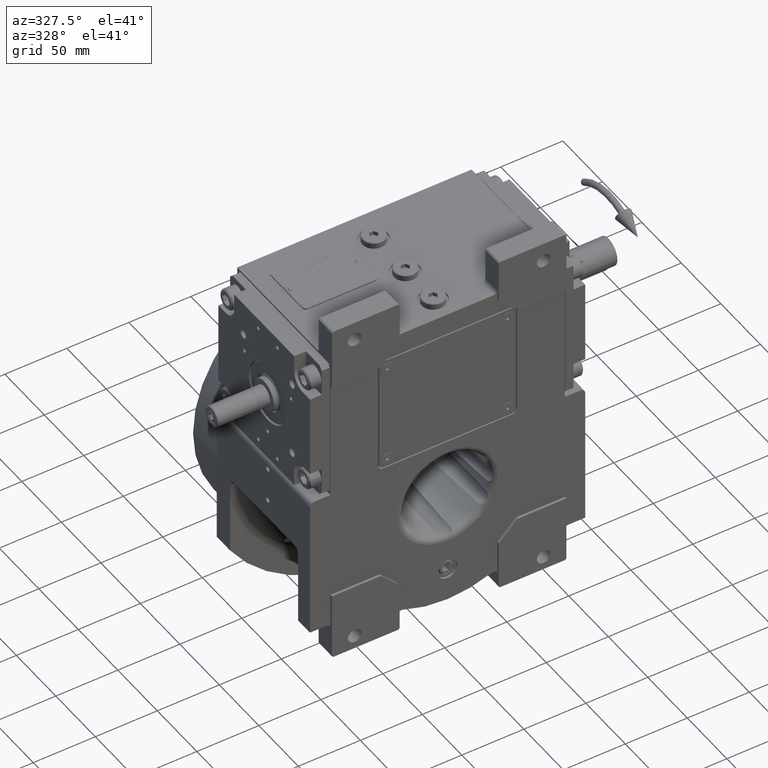
[diagram: clean part render]
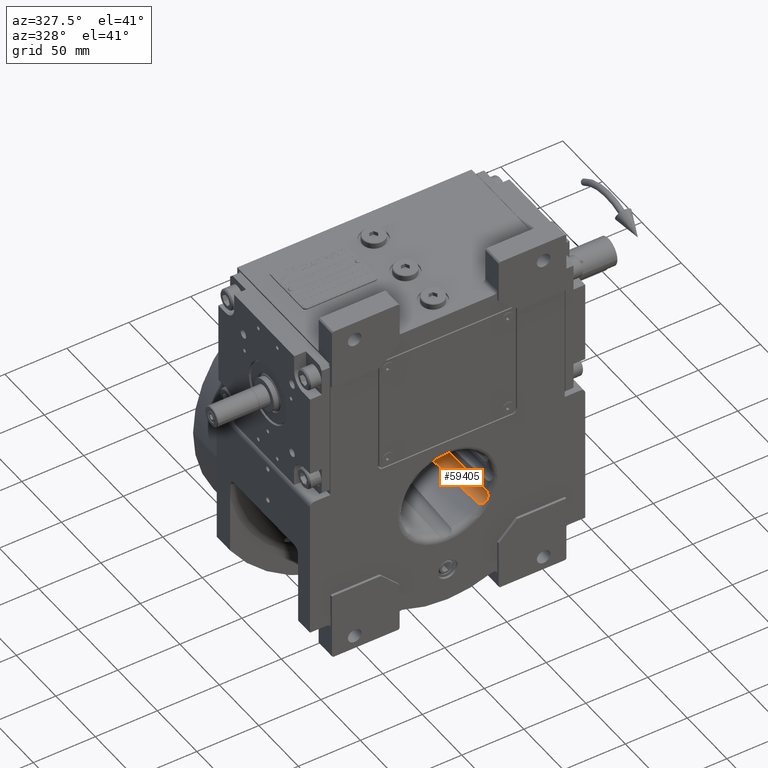
[diagram: same view with one face highlighted and labeled with its STEP entity id]
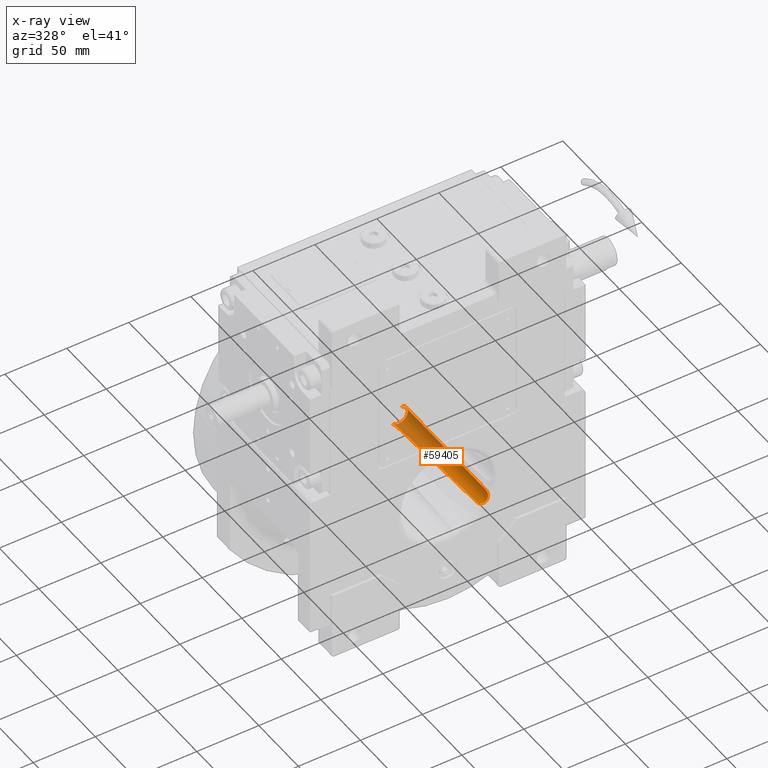
[diagram: x-ray of the same camera — body ghosted, the highlighted face saturated]
A machine part, auxiliary view. The second image highlights one B-rep face of the part: STEP entity #59405.
The next image is the same camera in x-ray: the body ghosted, the highlighted face saturated — about 51% of this face is hidden behind the body in this view.
In plain terms, the highlighted cylindrical surface (edge-blend (fillet) strip) has radius 7.5 mm, axis along (0, -1, 0).
Its self-contained STEP definition (entity closure, byte-faithful):
#50 = B_SPLINE_CURVE_WITH_KNOTS ( 'NONE', 3,
 ( #49718, #13193, #19049, #2536, #34223, #56230, #18701, #19393, #9010, #29040, #50051, #61069, #40411, #2869, #44891, #14194, #39728, #50390, #66891, #13868, #8354, #19716, #3207, #55892, #8683, #3872, #24868, #45900, #35916, #47243, #30716, #26241, #51731, #25199, #46916, #9344, #57949, #31061, #52750, #51395, #20059, #67573, #62419, #20403, #52422, #21416, #15901, #42433, #41429, #63441, #10376, #67923, #15220, #67235, #20741, #73, #25902, #36600, #57598, #414, #41090, #62067, #46228, #52079, #36950, #36253 ),
 .UNSPECIFIED., .F., .F.,
 ( 4, 2, 2, 1, 1, 2, 2, 2, 2, 1, 1, 2, 2, 2, 2, 1, 1, 2, 2, 2, 2, 2, 1, 1, 2, 2, 2, 2, 1, 1, 2, 2, 2, 2, 1, 1, 2, 2, 4 ),
 ( 0.000000000000000000, 0.06249999999999567013, 0.09374999999999290845, 0.1093749999999919786, 0.1171874999999911876, 0.1210937499999912847, 0.1249999999999913680, 0.1874999999999866773, 0.2187499999999844569, 0.2343749999999831801, 0.2421874999999826528, 0.2460937499999822642, 0.2499999999999818756, 0.3124999999999772959, 0.3437499999999748534, 0.3593749999999740763, 0.3671874999999734657, 0.3710937499999731881, 0.3749999999999729106, 0.4999999999999689138, 0.5624999999999669154, 0.5937499999999651390, 0.6093749999999642508, 0.6171874999999641398, 0.6210937499999640288, 0.6249999999999644729, 0.6874999999999646949, 0.7187499999999648059, 0.7343749999999650280, 0.7421874999999654721, 0.7460937499999658051, 0.7499999999999662492, 0.8124999999999700240, 0.8437499999999716893, 0.8593749999999724665, 0.8671874999999723554, 0.8710937499999726885, 0.8749999999999731326, 1.000000000000000000 ),
 .UNSPECIFIED. ) ;
#73 = CARTESIAN_POINT ( 'NONE',  ( 28.62129483368184424, -51.22089827138685081, -22.02211891114028930 ) ) ;
#252 = CARTESIAN_POINT ( 'NONE',  ( 28.64270902727741230, 49.28249355029117851, -7.988074472336900378 ) ) ;
#414 = CARTESIAN_POINT ( 'NONE',  ( 28.14449002315179627, -50.73086332806069976, -22.18124559644082439 ) ) ;
#1215 = CARTESIAN_POINT ( 'NONE',  ( 25.84112447786591815, -21.65130370040643726, -22.49889461834862203 ) ) ;
#1270 = CARTESIAN_POINT ( 'NONE',  ( 28.43763504361497141, 49.36092524768206147, -7.914062283107394791 ) ) ;
#2033 = EDGE_CURVE ( 'NONE', #54700, #2770, #9407, .T. ) ;
#2536 = CARTESIAN_POINT ( 'NONE',  ( 33.13291483700965756, -49.87096445335872374, -12.74149848118316974 ) ) ;
#2770 = VERTEX_POINT ( 'NONE', #23965 ) ;
#2869 = CARTESIAN_POINT ( 'NONE',  ( 33.42242944526029191, -51.42890714545311681, -14.04994483407304884 ) ) ;
#3074 = CARTESIAN_POINT ( 'NONE',  ( 22.62376389535896237, 47.72476955967440659, -21.70636552573297706 ) ) ;
#3145 = B_SPLINE_CURVE_WITH_KNOTS ( 'NONE', 3,
 ( #38760, #47719, #27378, #6690, #49084, #1215, #59765, #11868, #22214, #52871, #32203, #53897, #5686, #17402, #27731, #28073, #43235, #64237, #43587, #27040, #48730, #12214, #53214, #11511 ),
 .UNSPECIFIED., .F., .F.,
 ( 4, 2, 1, 2, 2, 1, 1, 1, 1, 1, 1, 1, 1, 1, 2, 2, 4 ),
 ( 0.000000000000000000, 0.2500000000000016098, 0.2812500000000018319, 0.2851562500000017764, 0.2890625000000017764, 0.2968750000000016653, 0.3125000000000015543, 0.3750000000000011657, 0.4375000000000008327, 0.4687500000000005551, 0.4843750000000004441, 0.4921875000000003886, 0.4960937500000003886, 0.4980468750000003886, 0.4990234375000003886, 0.5000000000000003331, 1.000000000000000000 ),
 .UNSPECIFIED. ) ;
#3207 = CARTESIAN_POINT ( 'NONE',  ( 33.47434757429027030, -52.13325520986163042, -15.46181975383077933 ) ) ;
#3609 = B_SPLINE_CURVE_WITH_KNOTS ( 'NONE', 3,
 ( #43291, #6404, #6746, #32609, #53611, #1270, #22265, #11917, #32949, #53951, #27785, #252, #64640, #17450, #26415, #59476, #54633, #23622, #45312, #33973, #23954, #39141, #44644, #8104, #60157, #12949, #39815, #49464, #28124, #66319, #13281, #29128, #12270, #7437, #65645, #19142, #54959, #44975, #60825, #18792 ),
 .UNSPECIFIED., .F., .F.,
 ( 4, 2, 2, 1, 1, 1, 2, 2, 2, 2, 2, 1, 1, 2, 2, 2, 2, 2, 1, 1, 1, 2, 2, 4 ),
 ( 0.000000000000000000, 0.1250000000000699718, 0.1875000000001050549, 0.2187500000001213751, 0.2343750000001275646, 0.2421875000001306732, 0.2460937500001305900, 0.2500000000001305067, 0.3750000000001355027, 0.4375000000001368905, 0.4687500000001377232, 0.4843750000001381117, 0.4921875000001391109, 0.4960937500001379452, 0.5000000000001366685, 0.6250000000000955902, 0.6875000000000729417, 0.7187500000000637268, 0.7343750000000593969, 0.7421875000000571765, 0.7460937500000520695, 0.7480468750000495159, 0.7500000000000468514, 1.000000000000000000 ),
 .UNSPECIFIED. ) ;
#3872 = CARTESIAN_POINT ( 'NONE',  ( 33.35239434236466849, -52.38337893050042737, -16.38553644103897255 ) ) ;
#3916 = CARTESIAN_POINT ( 'NONE',  ( 32.28860166177389601, -17.24455032077938554, -10.94150003703324892 ) ) ;
#4094 = ORIENTED_EDGE ( 'NONE', *, *, #44393, .F. ) ;
#5159 = CARTESIAN_POINT ( 'NONE',  ( 22.33398473274978357, 48.26979710815191993, -21.55574796819589878 ) ) ;
#5686 = CARTESIAN_POINT ( 'NONE',  ( 25.17767317591803433, -8.134360099423856738, -22.45791745369351133 ) ) ;
#6404 = CARTESIAN_POINT ( 'NONE',  ( 27.75952172322075739, 49.50000000000001421, -7.713583899941733435 ) ) ;
#6690 = CARTESIAN_POINT ( 'NONE',  ( 25.95599512359059347, -23.90877444478225655, -22.50037177852627224 ) ) ;
#6746 = CARTESIAN_POINT ( 'NONE',  ( 27.94791957820150330, 49.48053272191639707, -7.762554996281687103 ) ) ;
#7037 = CARTESIAN_POINT ( 'NONE',  ( 27.31593238095755183, -48.69402850002909844, -22.38019785351220392 ) ) ;
#7437 = CARTESIAN_POINT ( 'NONE',  ( 30.10453856292593500, 47.73902924923378066, -8.735856078122393953 ) ) ;
#7872 = CARTESIAN_POINT ( 'NONE',  ( 22.58719671728971790, 47.81176194098394916, -21.68800217263217434 ) ) ;
#8056 = CARTESIAN_POINT ( 'NONE',  ( 32.42569894083302273, -22.43255883661146655, -11.16332848127214206 ) ) ;
#8104 = CARTESIAN_POINT ( 'NONE',  ( 29.52136385091750626, 48.66597216092836931, -8.388291565594679255 ) ) ;
#8354 = CARTESIAN_POINT ( 'NONE',  ( 33.47823845104405649, -51.86280972426659019, -14.81397450803115845 ) ) ;
#8553 = CARTESIAN_POINT ( 'NONE',  ( 22.63672783654285681, 47.69338008764778181, -21.71287796099537459 ) ) ;
#8683 = CARTESIAN_POINT ( 'NONE',  ( 33.39774868221235238, -52.32431288209246389, -16.12886248307036752 ) ) ;
#8720 = CARTESIAN_POINT ( 'NONE',  ( 31.78450808967726715, 0.6730493479327744888, -10.24943762511609613 ) ) ;
#8847 = ORIENTED_EDGE ( 'NONE', *, *, #22171, .F. ) ;
#9010 = CARTESIAN_POINT ( 'NONE',  ( 33.24563799385272489, -50.54597896097496346, -13.13767611420215609 ) ) ;
#9344 = CARTESIAN_POINT ( 'NONE',  ( 31.77943181704246456, -52.58169936381241172, -19.76047654109651219 ) ) ;
#9407 = B_SPLINE_CURVE_WITH_KNOTS ( 'NONE', 3,
 ( #60587, #39921, #34761, #18235, #29240, #13390, #55762, #39258, #8553, #34071, #55067, #3074, #18899, #7872, #28899, #62675, #5159, #61655, #19984, #67156, #51315, #25821, #46149, #57872, #14462, #62344, #35482, #26170, #41009, #52342, #30301, #61994, #40664, #20326, #14803, #51999, #21003, #11181, #57169 ),
 .UNSPECIFIED., .F., .F.,
 ( 4, 2, 2, 1, 1, 1, 1, 2, 2, 2, 2, 2, 1, 1, 2, 2, 2, 2, 1, 1, 1, 2, 2, 4 ),
 ( 0.000000000000000000, 0.1249999999996872502, 0.1874999999995307642, 0.2187499999994505229, 0.2343749999994078625, 0.2421874999993843536, 0.2460937499993743061, 0.2480468749993699484, 0.2499999999993655908, 0.3749999999995065614, 0.4374999999995770605, 0.4687499999996113664, 0.4843749999996301847, 0.4921874999996396216, 0.4960937499996430078, 0.4999999999996463940, 0.6249999999997971623, 0.6874999999998716582, 0.7187499999999087397, 0.7343749999999265032, 0.7421874999999332756, 0.7460937499999357181, 0.7499999999999381606, 1.000000000000000000 ),
 .UNSPECIFIED. ) ;
#10376 = CARTESIAN_POINT ( 'NONE',  ( 29.65276615202078503, -51.90708757105891635, -21.53935020580502169 ) ) ;
#11181 = CARTESIAN_POINT ( 'NONE',  ( 20.69307600612309628, 49.49999999999997868, -20.32748980270164196 ) ) ;
#11511 = CARTESIAN_POINT ( 'NONE',  ( 22.86960190519749858, 46.61641710001740080, -21.82427154779674794 ) ) ;
#11868 = CARTESIAN_POINT ( 'NONE',  ( 25.82246390017906634, -21.28232574486081674, -22.49850229101309296 ) ) ;
#11917 = CARTESIAN_POINT ( 'NONE',  ( 28.57466538110647036, 49.31074969575459477, -7.962642419268740390 ) ) ;
#12214 = CARTESIAN_POINT ( 'NONE',  ( 24.12397273136076947, 14.69085708581392424, -22.30330539768032594 ) ) ;
#12270 = CARTESIAN_POINT ( 'NONE',  ( 30.10078198808483307, 47.74848905495525031, -8.733368828563790487 ) ) ;
#12825 = CARTESIAN_POINT ( 'NONE',  ( 33.03978607334229878, -48.69402850002909844, -12.46619244321105846 ) ) ;
#12905 = CARTESIAN_POINT ( 'NONE',  ( 30.86477767179748000, 30.61457057796922143, -9.294174959945960879 ) ) ;
#12949 = CARTESIAN_POINT ( 'NONE',  ( 29.84398276993930921, 48.26205238947590459, -8.568671729249834002 ) ) ;
#13193 = CARTESIAN_POINT ( 'NONE',  ( 33.04653019408335268, -49.04715237561592289, -12.48716493955152984 ) ) ;
#13281 = CARTESIAN_POINT ( 'NONE',  ( 30.08521639292132477, 47.78681093589526796, -8.722992375610900240 ) ) ;
#13390 = CARTESIAN_POINT ( 'NONE',  ( 22.70266047801476716, 47.51631062952504436, -21.74601640323799501 ) ) ;
#13574 = CARTESIAN_POINT ( 'NONE',  ( 32.38597410107138330, -20.91873774834332522, -11.09793643035527921 ) ) ;
#13868 = CARTESIAN_POINT ( 'NONE',  ( 33.47764524545743114, -51.85197947855031231, -14.79103816347397249 ) ) ;
#14194 = CARTESIAN_POINT ( 'NONE',  ( 33.45934058268172606, -51.66285232253062532, -14.42588205847576255 ) ) ;
#14232 = CARTESIAN_POINT ( 'NONE',  ( 33.03978607334229878, -48.69402850002909844, -12.46619244321105846 ) ) ;
#14462 = CARTESIAN_POINT ( 'NONE',  ( 22.03529066415310567, 48.65473814733762481, -21.37839334048851825 ) ) ;
#14803 = CARTESIAN_POINT ( 'NONE',  ( 21.24892285059066310, 49.27744914763169959, -20.81915221230131152 ) ) ;
#15220 = CARTESIAN_POINT ( 'NONE',  ( 29.60377671637495567, -51.88159357622579648, -21.56661933879855653 ) ) ;
#15901 = CARTESIAN_POINT ( 'NONE',  ( 30.12722229939502228, -52.12831518806559217, -21.25189303594446955 ) ) ;
#16362 = DIRECTION ( 'NONE',  ( 0.000000000000000000, -1.000000000000000000, 0.000000000000000000 ) ) ;
#17402 = CARTESIAN_POINT ( 'NONE',  ( 25.01204819467027818, -4.605542404343241358, -22.43743319469973940 ) ) ;
#17450 = CARTESIAN_POINT ( 'NONE',  ( 28.91352953625432676, 49.15419774465517833, -8.095842891699009058 ) ) ;
#18235 = CARTESIAN_POINT ( 'NONE',  ( 22.77012613445628375, 47.29236912243809599, -21.77974661774140230 ) ) ;
#18416 = CARTESIAN_POINT ( 'NONE',  ( 32.36932223986153900, -20.28739144586871745, -11.07086677380454454 ) ) ;
#18701 = CARTESIAN_POINT ( 'NONE',  ( 33.21212859810687945, -50.36584036514068430, -13.01068557545506899 ) ) ;
#18741 = CARTESIAN_POINT ( 'NONE',  ( 32.46469788917961807, -23.94214981186746272, -11.22999834177283596 ) ) ;
#18792 = CARTESIAN_POINT ( 'NONE',  ( 30.33517453208069981, 46.61641710001740080, -8.893520450439629244 ) ) ;
#18899 = CARTESIAN_POINT ( 'NONE',  ( 22.62211516543387191, 47.72870141299227242, -21.70553752209409026 ) ) ;
#19049 = CARTESIAN_POINT ( 'NONE',  ( 33.07365079777469674, -49.38786300711266364, -12.55935279040885710 ) ) ;
#19142 = CARTESIAN_POINT ( 'NONE',  ( 30.10713374134062548, 47.73245443567624591, -8.737569095646671613 ) ) ;
#19393 = CARTESIAN_POINT ( 'NONE',  ( 33.23548514069273097, -50.49247019460428021, -13.09839885204534937 ) ) ;
#19716 = CARTESIAN_POINT ( 'NONE',  ( 33.48547578822395110, -52.01488142739277976, -15.14047951761521027 ) ) ;
#19758 = CARTESIAN_POINT ( 'NONE',  ( 31.73400188051336102, 2.395844061787722357, -10.18801162608581734 ) ) ;
#19860 = CARTESIAN_POINT ( 'NONE',  ( 25.98076211353314946, -53.50000000000000000, -15.00000000000000000 ) ) ;
#19984 = CARTESIAN_POINT ( 'NONE',  ( 22.19732100662730900, 48.46008058166392374, -21.47664695237400423 ) ) ;
#20059 = CARTESIAN_POINT ( 'NONE',  ( 31.25600592147294421, -52.48272161955082993, -20.33124772010639703 ) ) ;
#20326 = CARTESIAN_POINT ( 'NONE',  ( 21.25551324107949114, 49.27398424493659945, -20.82450006294126510 ) ) ;
#20403 = CARTESIAN_POINT ( 'NONE',  ( 30.93515112099175468, -52.40729520783769857, -20.64223352888411611 ) ) ;
#20406 = CIRCLE ( 'NONE', #36908, 7.500000000000000888 ) ;
#20741 = CARTESIAN_POINT ( 'NONE',  ( 29.00815283428548597, -51.53334905786609710, -21.86827045392459112 ) ) ;
#21003 = CARTESIAN_POINT ( 'NONE',  ( 20.97081402576433717, 49.42205846986108497, -20.59251703942182843 ) ) ;
#21416 = CARTESIAN_POINT ( 'NONE',  ( 30.26292163212067621, -52.18244000722235398, -21.16009774410348854 ) ) ;
#22171 = EDGE_CURVE ( 'NONE', #22584, #54763, #61322, .T. ) ;
#22214 = CARTESIAN_POINT ( 'NONE',  ( 25.80416658513331285, -20.91999557119298458, -22.49808085314738193 ) ) ;
#22265 = CARTESIAN_POINT ( 'NONE',  ( 28.50160763767867422, 49.33898123012875914, -7.936168566622367138 ) ) ;
#22584 = VERTEX_POINT ( 'NONE', #23316 ) ;
#23316 = CARTESIAN_POINT ( 'NONE',  ( 30.33517453208069981, 46.61641710001740080, -8.893520450439629244 ) ) ;
#23576 = CARTESIAN_POINT ( 'NONE',  ( 31.95279148884219822, -5.111746351678312372, -10.45901985406064583 ) ) ;
#23622 = CARTESIAN_POINT ( 'NONE',  ( 29.37156123623733350, 48.81381732235010418, -8.310390390940554539 ) ) ;
#23954 = CARTESIAN_POINT ( 'NONE',  ( 29.49335652083560433, 48.69534323136073084, -8.373379583704611662 ) ) ;
#23965 = CARTESIAN_POINT ( 'NONE',  ( 20.42576029495975121, 49.50000000000000000, -20.03904304363890176 ) ) ;
#23988 = CYLINDRICAL_SURFACE ( 'NONE', #58388, 7.500000000000000000 ) ;
#24661 = DIRECTION ( 'NONE',  ( 0.000000000000000000, -1.000000000000000000, 0.000000000000000000 ) ) ;
#24868 = CARTESIAN_POINT ( 'NONE',  ( 33.32725159861366393, -52.41119431303569343, -16.51474471725534698 ) ) ;
#24909 = CARTESIAN_POINT ( 'NONE',  ( 32.34988864145558551, -19.55262967268101448, -11.03949197456885223 ) ) ;
#24914 = ORIENTED_EDGE ( 'NONE', *, *, #66155, .F. ) ;
#25199 = CARTESIAN_POINT ( 'NONE',  ( 32.29792690182187442, -52.63597494237206575, -19.05838855115340280 ) ) ;
#25821 = CARTESIAN_POINT ( 'NONE',  ( 22.06988287714060704, 48.61569016824530820, -21.39972999853679880 ) ) ;
#25902 = CARTESIAN_POINT ( 'NONE',  ( 28.49808564078249873, -51.10996891288393584, -22.06681137984809027 ) ) ;
#26170 = CARTESIAN_POINT ( 'NONE',  ( 21.53520977023645955, 49.10376853109988105, -21.04021700039325182 ) ) ;
#26241 = CARTESIAN_POINT ( 'NONE',  ( 33.09070784479143157, -52.58451685820838151, -17.48322197248920773 ) ) ;
#26415 = CARTESIAN_POINT ( 'NONE',  ( 29.13864406163955678, 49.00366431771388420, -8.197518935915487859 ) ) ;
#27040 = CARTESIAN_POINT ( 'NONE',  ( 24.85035119902524059, -1.112472536507594700, -22.41432441925408625 ) ) ;
#27378 = CARTESIAN_POINT ( 'NONE',  ( 26.42060736450770619, -32.92053605401157057, -22.49823645874132794 ) ) ;
#27731 = CARTESIAN_POINT ( 'NONE',  ( 24.92960939516506258, -2.830628599123432121, -22.42603774381368709 ) ) ;
#27785 = CARTESIAN_POINT ( 'NONE',  ( 28.63641896442101498, 49.28518681647794608, -7.985691113410303466 ) ) ;
#28004 = CARTESIAN_POINT ( 'NONE',  ( 22.86960190519749858, 46.61641710001740080, -21.82427154779674794 ) ) ;
#28073 = CARTESIAN_POINT ( 'NONE',  ( 24.88848357382039467, -1.940545457094043469, -22.42005283000051108 ) ) ;
#28124 = CARTESIAN_POINT ( 'NONE',  ( 30.05645457784235930, 47.85445427825549558, -8.703772930833009625 ) ) ;
#28899 = CARTESIAN_POINT ( 'NONE',  ( 22.52973918701344758, 47.93890862646882312, -21.66092112405951298 ) ) ;
#29040 = CARTESIAN_POINT ( 'NONE',  ( 33.25243354599053447, -50.58148107585857645, -13.16423490669627228 ) ) ;
#29128 = CARTESIAN_POINT ( 'NONE',  ( 30.09282515099910071, 47.76830461240660242, -8.728077812385688361 ) ) ;
#29240 = CARTESIAN_POINT ( 'NONE',  ( 22.74523210525672212, 47.38344902643122936, -21.76735042357594807 ) ) ;
#29423 = CARTESIAN_POINT ( 'NONE',  ( 32.35952123490710619, -19.91655888812725550, -11.05501537029025272 ) ) ;
#29642 = EDGE_LOOP ( 'NONE', ( #8847, #4094, #24914, #33203, #46016, #62993 ) ) ;
#30089 = CARTESIAN_POINT ( 'NONE',  ( 32.22895045230496436, -15.03979163791639451, -10.85049995281461932 ) ) ;
#30301 = CARTESIAN_POINT ( 'NONE',  ( 21.33736898357942380, 49.22919533939956693, -20.88994089226425643 ) ) ;
#30716 = CARTESIAN_POINT ( 'NONE',  ( 33.26178052561902376, -52.46491069388922313, -16.79918701303250828 ) ) ;
#31061 = CARTESIAN_POINT ( 'NONE',  ( 31.49487247763566700, -52.53291593041920748, -20.08474139120361812 ) ) ;
#32203 = CARTESIAN_POINT ( 'NONE',  ( 25.63379664433279714, -17.52649173574701535, -22.49279951268437117 ) ) ;
#32554 = CARTESIAN_POINT ( 'NONE',  ( 31.54307398319839706, 8.805876954284169500, -9.967259834580886491 ) ) ;
#32609 = CARTESIAN_POINT ( 'NONE',  ( 28.21938015926193088, 49.42472517470162785, -7.842779894946336761 ) ) ;
#32949 = CARTESIAN_POINT ( 'NONE',  ( 28.61078631395802319, 49.29598878160424391, -7.976047951818032722 ) ) ;
#33203 = ORIENTED_EDGE ( 'NONE', *, *, #2033, .F. ) ;
#33929 = CARTESIAN_POINT ( 'NONE',  ( 31.24040012726436544, 18.69828852044197021, -9.647982771712927175 ) ) ;
#33973 = CARTESIAN_POINT ( 'NONE',  ( 29.45934243377607942, 48.73003027899836326, -8.355465807543158263 ) ) ;
#34071 = CARTESIAN_POINT ( 'NONE',  ( 22.62919629247302922, 47.71171713200584463, -21.70909411398638156 ) ) ;
#34223 = CARTESIAN_POINT ( 'NONE',  ( 33.15573601727370345, -50.02738253618431941, -12.81453427379062404 ) ) ;
#34761 = CARTESIAN_POINT ( 'NONE',  ( 22.83338331949907385, 47.01256726751084614, -21.81060782861921510 ) ) ;
#35482 = CARTESIAN_POINT ( 'NONE',  ( 21.73576583365169412, 48.95321948062976247, -21.18429905374166111 ) ) ;
#35916 = CARTESIAN_POINT ( 'NONE',  ( 33.27797942854616053, -52.45287691597067692, -16.73237772134240586 ) ) ;
#36253 = CARTESIAN_POINT ( 'NONE',  ( 27.31593238095755183, -48.69402850002909844, -22.38019785351220392 ) ) ;
#36600 = CARTESIAN_POINT ( 'NONE',  ( 28.32341916981033236, -50.93299308847389995, -22.12549269365975846 ) ) ;
#36908 = AXIS2_PLACEMENT_3D ( 'NONE', #43921, #16362, #37393 ) ;
#36950 = CARTESIAN_POINT ( 'NONE',  ( 27.35902844947106871, -49.40060658000712124, -22.37089439156741477 ) ) ;
#37393 = DIRECTION ( 'NONE',  ( -0.7406669091431250518, 0.000000000000000000, -0.6718724058185229220 ) ) ;
#37742 = CARTESIAN_POINT ( 'NONE',  ( 30.33517453208069981, 46.61641710001740080, -8.893520450439629244 ) ) ;
#38760 = CARTESIAN_POINT ( 'NONE',  ( 27.31593238095755183, -48.69402850002909844, -22.38019785351220392 ) ) ;
#39141 = CARTESIAN_POINT ( 'NONE',  ( 29.50790216853367909, 48.68015834676161546, -8.381110381822734823 ) ) ;
#39258 = CARTESIAN_POINT ( 'NONE',  ( 22.65152861164745346, 47.65648259070213300, -21.72031641738724517 ) ) ;
#39728 = CARTESIAN_POINT ( 'NONE',  ( 33.46764479838432749, -51.72873525483529278, -14.54401815977693779 ) ) ;
#39815 = CARTESIAN_POINT ( 'NONE',  ( 29.97857188111136750, 48.02023749119349816, -8.652633098703407910 ) ) ;
#39921 = CARTESIAN_POINT ( 'NONE',  ( 22.86029583913068564, 46.81721205443194123, -21.82272831779136268 ) ) ;
#40111 = CARTESIAN_POINT ( 'NONE',  ( 32.06619938383440882, -9.117395881332679863, -10.61215416449536164 ) ) ;
#40411 = CARTESIAN_POINT ( 'NONE',  ( 33.36225299144895473, -51.11644195729437712, -13.63800494677365727 ) ) ;
#40664 = CARTESIAN_POINT ( 'NONE',  ( 21.26544806885413408, 49.26873207694674761, -20.83254474934463829 ) ) ;
#40790 = CARTESIAN_POINT ( 'NONE',  ( 32.88009487027704125, -40.89856346297970902, -12.03185933232648175 ) ) ;
#41009 = CARTESIAN_POINT ( 'NONE',  ( 21.47133379047789603, 49.14700669508015807, -20.99282715359665019 ) ) ;
#41090 = CARTESIAN_POINT ( 'NONE',  ( 28.10521256263347212, -50.68228589387105387, -22.19279268949464523 ) ) ;
#41429 = CARTESIAN_POINT ( 'NONE',  ( 29.82192132251795158, -51.99172791168177810, -21.44237310154095866 ) ) ;
#42433 = CARTESIAN_POINT ( 'NONE',  ( 29.92368513170021060, -52.03866760498323885, -21.38040769592061707 ) ) ;
#43235 = CARTESIAN_POINT ( 'NONE',  ( 24.86794407546805630, -1.494847326223764705, -22.41698871863808762 ) ) ;
#43242 = CARTESIAN_POINT ( 'NONE',  ( 30.60433097940451930, 38.59658209810228868, -9.082494152327269532 ) ) ;
#43291 = CARTESIAN_POINT ( 'NONE',  ( 27.56720049080099599, 49.50000000000000000, -7.669705785227179717 ) ) ;
#43587 = CARTESIAN_POINT ( 'NONE',  ( 24.85328262467176330, -1.176221859947928605, -22.41477066934508855 ) ) ;
#43921 = CARTESIAN_POINT ( 'NONE',  ( 25.98076211353314946, 49.50000000000000000, -15.00000000000000000 ) ) ;
#44118 = VERTEX_POINT ( 'NONE', #65464 ) ;
#44393 = EDGE_CURVE ( 'NONE', #44118, #22584, #3609, .T. ) ;
#44592 = CARTESIAN_POINT ( 'NONE',  ( 31.83112255662121015, -0.9257628672363635847, -10.30709838854741101 ) ) ;
#44644 = CARTESIAN_POINT ( 'NONE',  ( 29.51759123493983950, 48.66996373599013026, -8.386275873903700884 ) ) ;
#44891 = CARTESIAN_POINT ( 'NONE',  ( 33.43965772086238530, -51.52630988581428539, -14.19555978917377281 ) ) ;
#44927 = CARTESIAN_POINT ( 'NONE',  ( 31.82754619688286368, -0.8028076786943144638, -10.30264249870686832 ) ) ;
#44975 = CARTESIAN_POINT ( 'NONE',  ( 30.23961724302792931, 47.39529211195566916, -8.824785336759852328 ) ) ;
#45312 = CARTESIAN_POINT ( 'NONE',  ( 29.43009443597915009, 48.75850298374022884, -8.340334036058765221 ) ) ;
#45900 = CARTESIAN_POINT ( 'NONE',  ( 33.29344318340528019, -52.44078996532201131, -16.66688722583370108 ) ) ;
#45942 = CARTESIAN_POINT ( 'NONE',  ( 32.36593310566527748, -20.15906628366184350, -11.06537563511116673 ) ) ;
#46016 = ORIENTED_EDGE ( 'NONE', *, *, #66140, .F. ) ;
#46149 = CARTESIAN_POINT ( 'NONE',  ( 22.05321605947132468, 48.63461906664542056, -21.38946622886823690 ) ) ;
#46228 = CARTESIAN_POINT ( 'NONE',  ( 28.06722011688169616, -50.63430292875203520, -22.20382291926351925 ) ) ;
#46916 = CARTESIAN_POINT ( 'NONE',  ( 32.10086899087711032, -52.62272617616122261, -19.34993103215717625 ) ) ;
#47183 = EDGE_CURVE ( 'NONE', #54763, #52691, #50, .T. ) ;
#47243 = CARTESIAN_POINT ( 'NONE',  ( 33.26745204195469086, -52.46080387294993130, -16.77610025241083136 ) ) ;
#47719 = CARTESIAN_POINT ( 'NONE',  ( 26.85700044197170655, -40.84851845727058617, -22.45959300186637364 ) ) ;
#48730 = CARTESIAN_POINT ( 'NONE',  ( 24.84883317504885980, -1.079452833656314947, -22.41409285190259837 ) ) ;
#49084 = CARTESIAN_POINT ( 'NONE',  ( 25.89832868071304262, -22.78085453416666795, -22.49999219110886628 ) ) ;
#49464 = CARTESIAN_POINT ( 'NONE',  ( 30.01393582156527629, 47.94789118250093907, -8.675667534118083779 ) ) ;
#49718 = CARTESIAN_POINT ( 'NONE',  ( 33.03978607334229878, -48.69402850002909844, -12.46619244321105846 ) ) ;
#49758 = CARTESIAN_POINT ( 'NONE',  ( 31.63204738762150114, 5.844536196987435872, -10.06723832594381740 ) ) ;
#50051 = CARTESIAN_POINT ( 'NONE',  ( 33.25605211856567678, -50.60021180593497547, -13.17852828129284148 ) ) ;
#50183 = FACE_OUTER_BOUND ( 'NONE', #29642, .T. ) ;
#50390 = CARTESIAN_POINT ( 'NONE',  ( 33.47425245457162646, -51.80156191773620833, -14.68692804222108350 ) ) ;
#51101 = CARTESIAN_POINT ( 'NONE',  ( 31.80964228797403237, -0.1879601705583714977, -10.28041125740096895 ) ) ;
#51315 = CARTESIAN_POINT ( 'NONE',  ( 22.10770932009527812, 48.57166420962470710, -21.42287206637867314 ) ) ;
#51395 = CARTESIAN_POINT ( 'NONE',  ( 31.30161397902174514, -52.49301817271962278, -20.28601111682702651 ) ) ;
#51731 = CARTESIAN_POINT ( 'NONE',  ( 32.83203325595918898, -52.63593566235078214, -18.13317245575580472 ) ) ;
#51999 = CARTESIAN_POINT ( 'NONE',  ( 21.24662505853896377, 49.27865327260145989, -20.81728536724554601 ) ) ;
#52079 = CARTESIAN_POINT ( 'NONE',  ( 27.62068859797980025, -50.05446656826163832, -22.33136188080274920 ) ) ;
#52342 = CARTESIAN_POINT ( 'NONE',  ( 21.38109797860681383, 49.20323703545753347, -20.92388319250946438 ) ) ;
#52422 = CARTESIAN_POINT ( 'NONE',  ( 30.66795111193989598, -52.32953584293530014, -20.86511408391906386 ) ) ;
#52691 = VERTEX_POINT ( 'NONE', #7037 ) ;
#52750 = CARTESIAN_POINT ( 'NONE',  ( 31.40682313398743375, -52.51570713425481784, -20.17899220836424945 ) ) ;
#52871 = CARTESIAN_POINT ( 'NONE',  ( 25.76759777113095851, -20.19458486973722344, -22.49715182439169325 ) ) ;
#53214 = CARTESIAN_POINT ( 'NONE',  ( 23.46596071463760680, 30.57923328208096336, -22.10146558073946821 ) ) ;
#53611 = CARTESIAN_POINT ( 'NONE',  ( 28.30801969516482686, 49.40169833435105318, -7.870651603668990859 ) ) ;
#53897 = CARTESIAN_POINT ( 'NONE',  ( 25.41640791693388124, -13.11549990565551482, -22.48053801938985785 ) ) ;
#53951 = CARTESIAN_POINT ( 'NONE',  ( 28.62617784839352808, 49.28952576711153455, -7.981829077717369714 ) ) ;
#54633 = CARTESIAN_POINT ( 'NONE',  ( 29.33249105879997742, 48.84851816177970107, -8.290854971197694212 ) ) ;
#54700 = VERTEX_POINT ( 'NONE', #28004 ) ;
#54763 = VERTEX_POINT ( 'NONE', #12825 ) ;
#54959 = CARTESIAN_POINT ( 'NONE',  ( 30.10712318092020823, 47.73248351826379832, -8.737562506052258371 ) ) ;
#55067 = CARTESIAN_POINT ( 'NONE',  ( 22.62594056509064799, 47.71955180481243275, -21.70745877580261407 ) ) ;
#55594 = CARTESIAN_POINT ( 'NONE',  ( 31.83285154411025175, -0.9852262047548006052, -10.30925486874108365 ) ) ;
#55762 = CARTESIAN_POINT ( 'NONE',  ( 22.68006732258932701, 47.58180347187447978, -21.73466462636959307 ) ) ;
#55892 = CARTESIAN_POINT ( 'NONE',  ( 33.42140232371107800, -52.28035835813800247, -15.96006947599738446 ) ) ;
#56230 = CARTESIAN_POINT ( 'NONE',  ( 33.19285163552664386, -50.25430297535832125, -12.94227091232495752 ) ) ;
#57169 = CARTESIAN_POINT ( 'NONE',  ( 20.42576029495975121, 49.50000000000000000, -20.03904304363890176 ) ) ;
#57598 = CARTESIAN_POINT ( 'NONE',  ( 28.23862424446462072, -50.84186257216887128, -22.15274620477019596 ) ) ;
#57872 = CARTESIAN_POINT ( 'NONE',  ( 22.04200271149204227, 48.64724941288804416, -21.38254587753193547 ) ) ;
#57949 = CARTESIAN_POINT ( 'NONE',  ( 31.66799302031430585, -52.56447173289878805, -19.89287586590361911 ) ) ;
#58388 = AXIS2_PLACEMENT_3D ( 'NONE', #19860, #24661, #66006 ) ;
#58742 = CARTESIAN_POINT ( 'NONE',  ( 31.36309479193349148, 14.73565037171159986, -9.771964152097579515 ) ) ;
#59405 = ADVANCED_FACE ( 'NONE', ( #50183 ), #23988, .F. ) ;
#59476 = CARTESIAN_POINT ( 'NONE',  ( 29.21577412379989624, 48.94650271572595557, -8.233693486327247513 ) ) ;
#59765 = CARTESIAN_POINT ( 'NONE',  ( 25.82842384741062958, -21.40025213430799056, -22.49863301333059340 ) ) ;
#60157 = CARTESIAN_POINT ( 'NONE',  ( 29.71619316337481820, 48.45773235003044732, -8.492806265416732003 ) ) ;
#60587 = CARTESIAN_POINT ( 'NONE',  ( 22.86960190519749858, 46.61641710001740080, -21.82427154779674794 ) ) ;
#60825 = CARTESIAN_POINT ( 'NONE',  ( 30.32318383828967256, 47.01647841981433373, -8.879195928042326713 ) ) ;
#61069 = CARTESIAN_POINT ( 'NONE',  ( 33.31070817824257801, -50.88096992621976256, -13.39657034504532263 ) ) ;
#61113 = CARTESIAN_POINT ( 'NONE',  ( 32.69573047950764533, -32.98277521135113943, -11.63515309554810706 ) ) ;
#61322 = B_SPLINE_CURVE_WITH_KNOTS ( 'NONE', 3,
 ( #37742, #43242, #12905, #33929, #58742, #32554, #49758, #19758, #8720, #51101, #61441, #44927, #44592, #55594, #23576, #40111, #30089, #3916, #24909, #29423, #45942, #18416, #13574, #8056, #18741, #61113, #40790, #14232 ),
 .UNSPECIFIED., .F., .F.,
 ( 4, 2, 2, 1, 1, 1, 1, 1, 2, 2, 2, 1, 1, 2, 2, 1, 2, 4 ),
 ( 0.000000000000000000, 0.2499999999999990563, 0.3749999999999985567, 0.4374999999999983347, 0.4687499999999982236, 0.4843749999999981681, 0.4921874999999981681, 0.4960937499999981126, 0.4980468749999981126, 0.4999999999999981126, 0.6249999999999975575, 0.6874999999999972244, 0.6953124999999971134, 0.6992187499999972244, 0.7031249999999973355, 0.7187499999999975575, 0.7499999999999977796, 1.000000000000000000 ),
 .UNSPECIFIED. ) ;
#61441 = CARTESIAN_POINT ( 'NONE',  ( 31.82217951581339221, -0.6183679701949786889, -10.29596333041291700 ) ) ;
#61655 = CARTESIAN_POINT ( 'NONE',  ( 22.23358381684137797, 48.41149659531335914, -21.49791087561449032 ) ) ;
#61994 = CARTESIAN_POINT ( 'NONE',  ( 21.28897169621282259, 49.25608763408968827, -20.85147349115105797 ) ) ;
#62067 = CARTESIAN_POINT ( 'NONE',  ( 28.07926875277360779, -50.64967701580562220, -22.20034695413676218 ) ) ;
#62344 = CARTESIAN_POINT ( 'NONE',  ( 21.88167698036534858, 48.82491994595200424, -21.28318595040456174 ) ) ;
#62419 = CARTESIAN_POINT ( 'NONE',  ( 31.21102630237928111, -52.47236941032746671, -20.37537762507152550 ) ) ;
#62675 = CARTESIAN_POINT ( 'NONE',  ( 22.38974549796894919, 48.18080927381087264, -21.58638050679685705 ) ) ;
#62993 = ORIENTED_EDGE ( 'NONE', *, *, #47183, .F. ) ;
#63441 = CARTESIAN_POINT ( 'NONE',  ( 29.70345441384621310, -51.93307686450362581, -21.51082020502984093 ) ) ;
#64237 = CARTESIAN_POINT ( 'NONE',  ( 24.85768018147863501, -1.271834120825067638, -22.41543876716534101 ) ) ;
#64640 = CARTESIAN_POINT ( 'NONE',  ( 28.77210577432698457, 49.22668986262901569, -8.037263998503879847 ) ) ;
#65464 = CARTESIAN_POINT ( 'NONE',  ( 27.56720049080099599, 49.50000000000000000, -7.669705785227179717 ) ) ;
#65645 = CARTESIAN_POINT ( 'NONE',  ( 30.10610183909127358, 47.73507147592822975, -8.736888363846805561 ) ) ;
#66006 = DIRECTION ( 'NONE',  ( -1.000000000000000000, 0.000000000000000000, 0.000000000000000000 ) ) ;
#66140 = EDGE_CURVE ( 'NONE', #52691, #54700, #3145, .T. ) ;
#66155 = EDGE_CURVE ( 'NONE', #2770, #44118, #20406, .T. ) ;
#66319 = CARTESIAN_POINT ( 'NONE',  ( 30.06886490242911236, 47.82580786417747731, -8.712065287531645552 ) ) ;
#66891 = CARTESIAN_POINT ( 'NONE',  ( 33.47638412819470943, -51.83192453920597131, -14.74925148371837302 ) ) ;
#67156 = CARTESIAN_POINT ( 'NONE',  ( 22.13834361863849765, 48.53425472447489852, -21.44136185593413657 ) ) ;
#67235 = CARTESIAN_POINT ( 'NONE',  ( 29.28897938718188243, -51.71447019792519484, -21.73923974886477595 ) ) ;
#67573 = CARTESIAN_POINT ( 'NONE',  ( 31.22548694015809545, -52.47572850317106941, -20.36126595106295767 ) ) ;
#67923 = CARTESIAN_POINT ( 'NONE',  ( 29.61899564366073179, -51.88956957956813199, -21.55819367444201617 ) ) ;